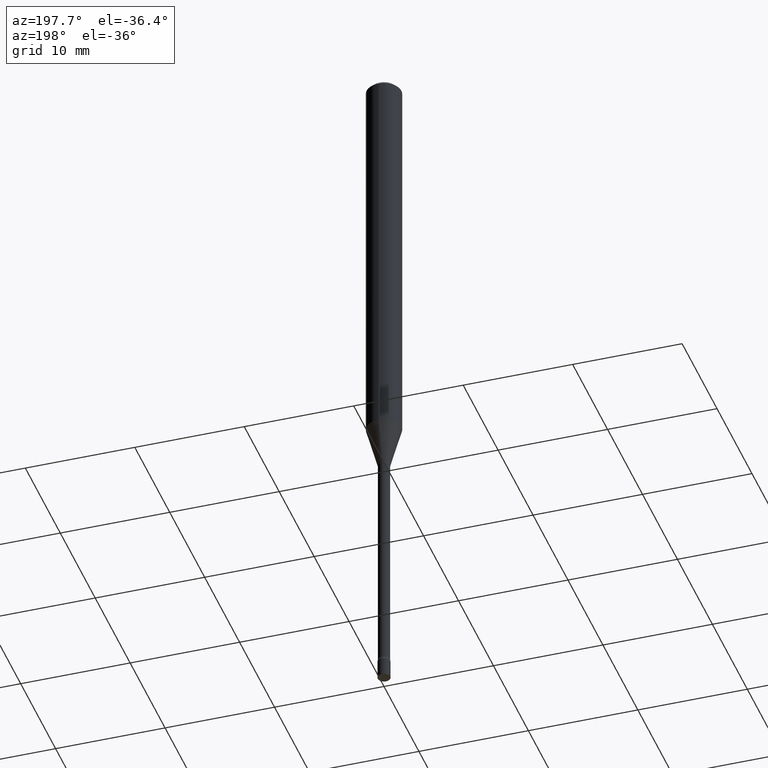
[diagram: clean part render]
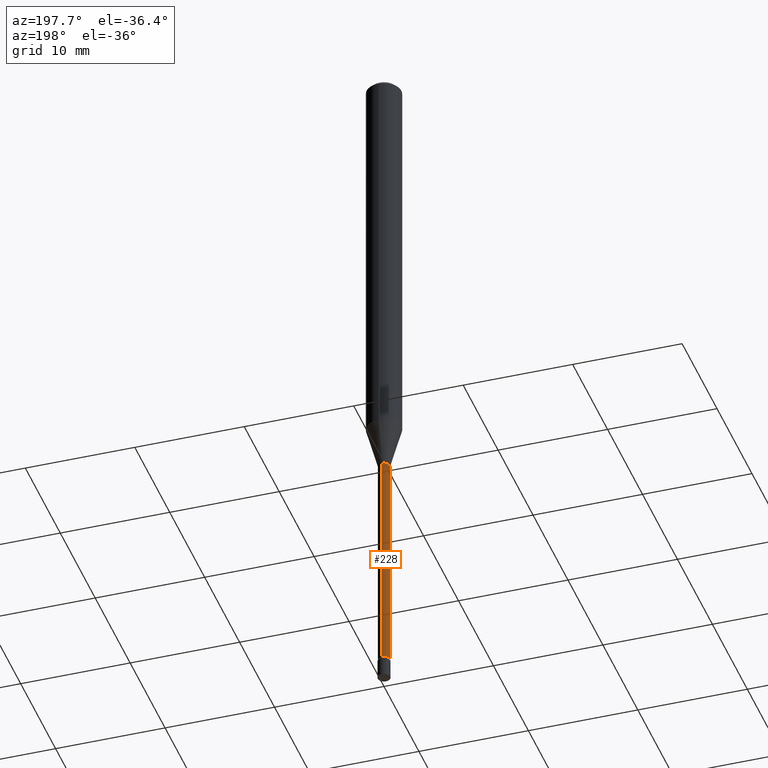
[diagram: same view with one face highlighted and labeled with its STEP entity id]
A machine part, auxiliary view. The second image highlights one B-rep face of the part: STEP entity #228.
In plain terms, the highlighted cylindrical surface (edge-blend (fillet) strip) has radius 0.5372 mm, axis along (-0, 0, 1).
Its self-contained STEP definition (entity closure, byte-faithful):
#20 = ORIENTED_EDGE ( 'NONE', *, *, #69, .F. ) ;
#23 = VERTEX_POINT ( 'NONE', #105 ) ;
#30 = AXIS2_PLACEMENT_3D ( 'NONE', #398, #516, #35 ) ;
#35 = DIRECTION ( 'NONE',  ( -6.982962677686266711E-15, -1.000000000000000000, 0.000000000000000000 ) ) ;
#69 = EDGE_CURVE ( 'NONE', #458, #497, #381, .T. ) ;
#80 = CARTESIAN_POINT ( 'NONE',  ( 0.000000000000000000, 0.000000000000000000, 0.000000000000000000 ) ) ;
#105 = CARTESIAN_POINT ( 'NONE',  ( -1.476896606330065208E-16, -0.02115000000000865840, -2.425780876267512376 ) ) ;
#108 = VECTOR ( 'NONE', #518, 39.37007874015748143 ) ;
#113 = CARTESIAN_POINT ( 'NONE',  ( 1.502797886132618208E-16, 0.02115000000000009234, -7.384600263161144504E-17 ) ) ;
#114 = DIRECTION ( 'NONE',  ( -2.445430100594402823E-29, 3.491536767452062227E-15, 1.000000000000000000 ) ) ;
#138 = EDGE_CURVE ( 'NONE', #23, #181, #241, .T. ) ;
#155 = CARTESIAN_POINT ( 'NONE',  ( 5.932077572270840864E-29, -8.469703119270102287E-15, -2.425780876267512376 ) ) ;
#156 = EDGE_CURVE ( 'NONE', #458, #23, #399, .T. ) ;
#166 = ORIENTED_EDGE ( 'NONE', *, *, #182, .F. ) ;
#176 = ORIENTED_EDGE ( 'NONE', *, *, #156, .T. ) ;
#181 = VERTEX_POINT ( 'NONE', #287 ) ;
#182 = EDGE_CURVE ( 'NONE', #497, #181, #484, .T. ) ;
#186 = CARTESIAN_POINT ( 'NONE',  ( 1.550759520797016510E-16, 0.02114999999999172056, -2.425780876267512376 ) ) ;
#198 = AXIS2_PLACEMENT_3D ( 'NONE', #155, #482, #443 ) ;
#200 = AXIS2_PLACEMENT_3D ( 'NONE', #80, #520, #483 ) ;
#226 = EDGE_LOOP ( 'NONE', ( #20, #176, #308, #166 ) ) ;
#228 = ADVANCED_FACE ( 'NONE', ( #477 ), #480, .T. ) ;
#231 = CARTESIAN_POINT ( 'NONE',  ( 1.502797886133209360E-16, 0.02114999999999440244, -1.601974787463811278 ) ) ;
#238 = CARTESIAN_POINT ( 'NONE',  ( -1.476896606330651677E-16, -0.02115000000000009234, 7.384600263161144504E-17 ) ) ;
#241 = LINE ( 'NONE', #238, #108 ) ;
#287 = CARTESIAN_POINT ( 'NONE',  ( -1.476896606330253056E-16, -0.02115000000000558794, -1.601974787463811278 ) ) ;
#308 = ORIENTED_EDGE ( 'NONE', *, *, #138, .T. ) ;
#381 = LINE ( 'NONE', #113, #494 ) ;
#398 = CARTESIAN_POINT ( 'NONE',  ( 3.917517365657324396E-29, -5.593353870961100159E-15, -1.601974787463811278 ) ) ;
#399 = CIRCLE ( 'NONE', #198, 0.02115000000000018948 ) ;
#443 = DIRECTION ( 'NONE',  ( -6.982962677686265133E-15, -1.000000000000000000, 0.000000000000000000 ) ) ;
#458 = VERTEX_POINT ( 'NONE', #186 ) ;
#477 = FACE_OUTER_BOUND ( 'NONE', #226, .T. ) ;
#480 = CYLINDRICAL_SURFACE ( 'NONE', #200, 0.02115000000000009234 ) ;
#482 = DIRECTION ( 'NONE',  ( -2.445430100594402543E-29, 3.491536767452062227E-15, 1.000000000000000000 ) ) ;
#483 = DIRECTION ( 'NONE',  ( -6.982962677686265922E-15, -1.000000000000000000, 3.491536767452062621E-15 ) ) ;
#484 = CIRCLE ( 'NONE', #30, 0.02114999999999999519 ) ;
#494 = VECTOR ( 'NONE', #114, 39.37007874015748143 ) ;
#497 = VERTEX_POINT ( 'NONE', #231 ) ;
#516 = DIRECTION ( 'NONE',  ( -2.445430100594402543E-29, 3.491536767452062227E-15, 1.000000000000000000 ) ) ;
#518 = DIRECTION ( 'NONE',  ( -2.445430100594402823E-29, 3.491536767452062227E-15, 1.000000000000000000 ) ) ;
#520 = DIRECTION ( 'NONE',  ( -2.445430100594402543E-29, 3.491536767452062227E-15, 1.000000000000000000 ) ) ;